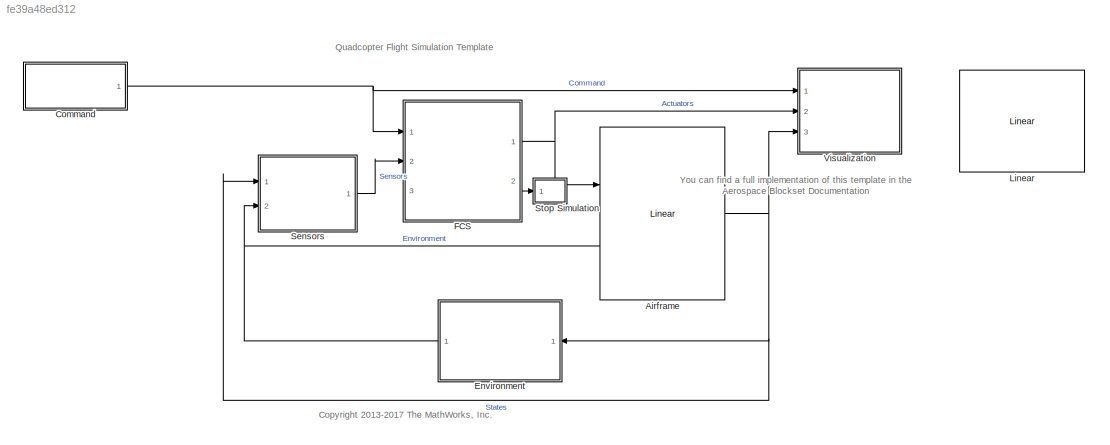
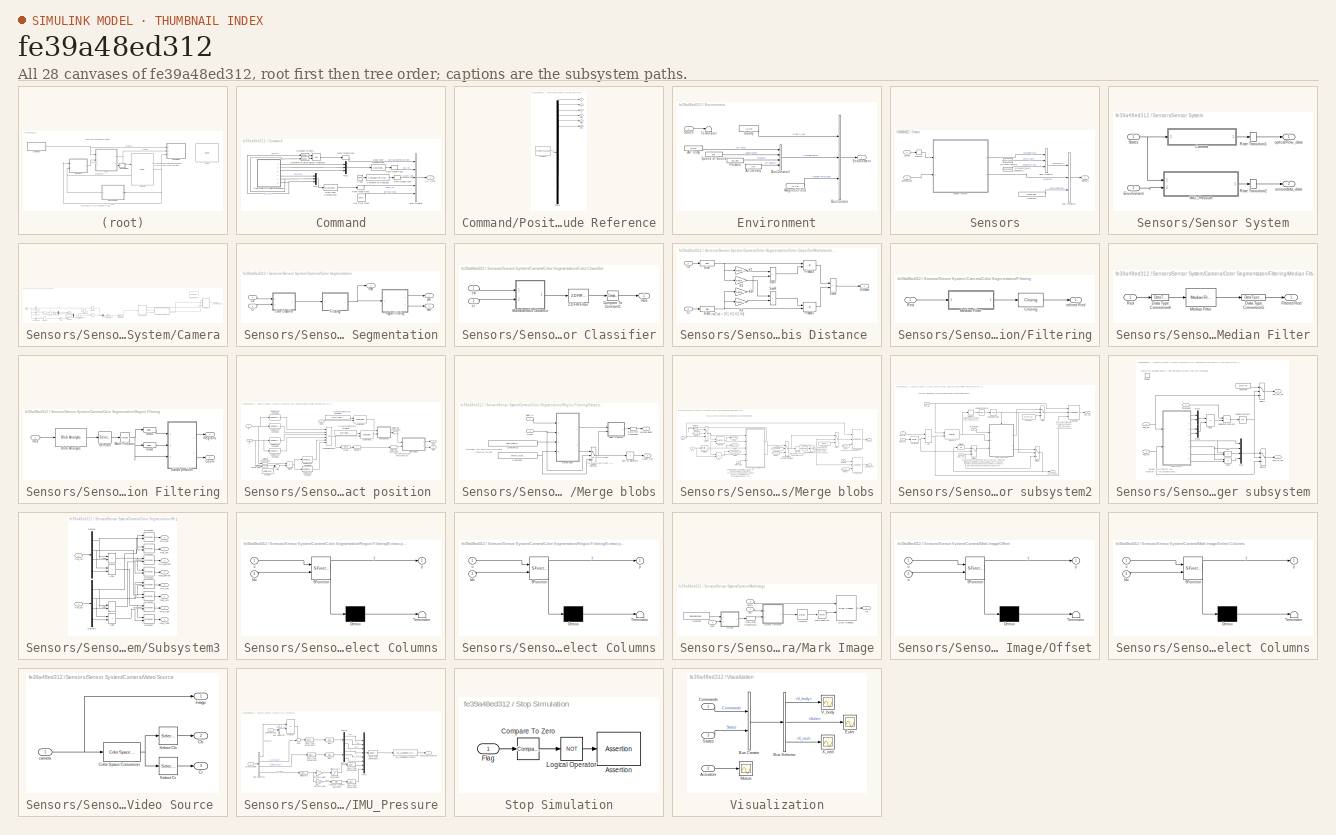
[diagram: thumbnail index - all 28 canvases of the model, root first then tree order]
MODEL slx_fe39a48ed312
KIND model
CONFIG AbsTol = auto
CONFIG EnableMultiTasking = on
CONFIG FixedStep = Ts
CONFIG MaxStep = auto
CONFIG MinStep = auto
CONFIG RelTol = 1e-3
CONFIG SampleTimeConstraint = Unconstrained
CONFIG Solver = ode3
CONFIG SolverName = ode3
CONFIG StartTime = 0
CONFIG StopTime = TFinal
BLOCK [Reference] Airframe  REF=liblinearframe/Linear
  Ports = [2, 1]
  SourceBlock = liblinearframe/Linear
BLOCK [SubSystem] Command
  Ports = [0, 1]
  RequestExecContextInheritance = off
  VariantControl = VSS_COMMAND_SIGBLDR
BLOCK [Outport] Command/AC Cmd
  OutDataTypeStr = Bus: CommandBus
  VectorParamsAs1DForOutWhenUnconnected = off
BLOCK [BusCreator] Command/Bus Creator
  DisplayOption = bar
  InheritFromInputs = on
  Inputs = 5
  NonVirtualBus = on
  OutDataTypeStr = Bus: CommandBus
  Ports = [5, 1]
BLOCK [Clock] Command/Clock
BLOCK [Reference] Command/Compare To Constant  REF=simulink/Logic and Bit
Operations/Compare
To Constant
  Ports = [1, 1]
  SourceBlock = simulink/Logic and Bit\nOperations/Compare\nTo Constant
  SourceProductBaseCode = SL
  SourceType = Compare To Constant
BLOCK [Reference] Command/Compare To Zero  REF=simulink/Logic and Bit
Operations/Compare
To Zero
  Ports = [1, 1]
  SourceBlock = simulink/Logic and Bit\nOperations/Compare\nTo Zero
  SourceProductBaseCode = SL
  SourceType = Compare To Zero
BLOCK [Reference] Command/Compare To Zero1  REF=simulink/Logic and Bit
Operations/Compare
To Zero
  Ports = [1, 1]
  SourceBlock = simulink/Logic and Bit\nOperations/Compare\nTo Zero
  SourceProductBaseCode = SL
  SourceType = Compare To Zero
BLOCK [DataTypeConversion] Command/Data Type Conversion1
  OutDataTypeStr = single
  RndMeth = Floor
  SaturateOnIntegerOverflow = off
BLOCK [DataTypeConversion] Command/Data Type Conversion3
  OutDataTypeStr = single
  RndMeth = Floor
  SaturateOnIntegerOverflow = off
BLOCK [Reference] Command/Live Time Ticks  REF=simulink/Sources/Counter
Free-Running
  Ports = [0, 1]
  SourceBlock = simulink/Sources/Counter\nFree-Running
  SourceProductBaseCode = SL
  SourceType = Counter Free-Running
BLOCK [Logic] Command/Logical Operator
  AllPortsSameDT = off
  OutDataTypeStr = boolean
  Ports = [2, 1]
BLOCK [Mux] Command/Mux
  DisplayOption = bar
  Inputs = 3
  Ports = [3, 1]
BLOCK [Mux] Command/Mux1
  DisplayOption = bar
  Inputs = 3
  Ports = [3, 1]
BLOCK [SubSystem] Command/Position//Attitude Reference
  ClipboardFcn = sigbuilder_block('clipboard');
  CloseFcn = sigbuilder_block('close');
  ContinueFcn = sigbuilder_block('continue');
  CopyFcn = sigbuilder_block('copy');
  DeleteFcn = sigbuilder_block('delete');
  LoadFcn = sigbuilder_block('load');
  MaskHideContents = on
  ModelCloseFcn = sigbuilder_block('modelClose');
  NameChangeFcn = sigbuilder_block('namechange');
  OpenFcn = sigbuilder_block('open',[246 211.5 555 408.75 ]);
  PauseFcn = sigbuilder_block('pause');
  Ports = [0, 6]
  PreSaveFcn = sigbuilder_block('preSave');
  RequestExecContextInheritance = off
  StartFcn = sigbuilder_block('start');
  StopFcn = sigbuilder_block('stop');
  Tag = STV Subsys
BLOCK [Demux] Command/Position//Attitude Reference/Demux
  DisplayOption = none
  Outputs = 6
  Ports = [1, 6]
  Tag = STV Demux
BLOCK [FromWorkspace] Command/Position//Attitude Reference/FromWs
  Tag = STV FromWs
  VariableName = tuvar
BLOCK [Outport] Command/Position//Attitude Reference/Pitch
  Port = 5
  Tag = STV Outport
  VectorParamsAs1DForOutWhenUnconnected = off
BLOCK [Outport] Command/Position//Attitude Reference/Roll
  Port = 6
  Tag = STV Outport
  VectorParamsAs1DForOutWhenUnconnected = off
BLOCK [Outport] Command/Position//Attitude Reference/X
  Tag = STV Outport
  VectorParamsAs1DForOutWhenUnconnected = off
BLOCK [Outport] Command/Position//Attitude Reference/Y
  Port = 2
  Tag = STV Outport
  VectorParamsAs1DForOutWhenUnconnected = off
BLOCK [Outport] Command/Position//Attitude Reference/Yaw
  Port = 4
  Tag = STV Outport
  VectorParamsAs1DForOutWhenUnconnected = off
BLOCK [Outport] Command/Position//Attitude Reference/Z
  Port = 3
  Tag = STV Outport
  VectorParamsAs1DForOutWhenUnconnected = off
BLOCK [RateTransition] Command/Rate Transition1
  OutPortSampleTime = Ts
BLOCK [RateTransition] Command/Rate Transition2
  OutPortSampleTime = Ts
BLOCK [RateTransition] Command/Rate Transition3
  OutPortSampleTime = Ts
BLOCK [RateTransition] Command/Rate Transition4
  OutPortSampleTime = Ts
BLOCK [SubSystem] Environment
  Ports = [1, 1]
  RequestExecContextInheritance = off
  TreatAsAtomicUnit = on
  VariantControl = VSS_ENVIRONMENT_CST
BLOCK [Constant] Environment/Air Density
  Value = rho
BLOCK [Constant] Environment/Air Temp
  Value = 273+15
BLOCK [BusCreator] Environment/Bus Creator
  DisplayOption = bar
  InheritFromInputs = on
  Inputs = 3
  NonVirtualBus = on
  OutDataTypeStr = Bus: EnvironmentBus
  Ports = [3, 1]
BLOCK [BusCreator] Environment/Bus Creator1
  DisplayOption = bar
  InheritFromInputs = on
  Inputs = 4
  NonVirtualBus = on
  OutDataTypeStr = Bus: AtmosphereBus
  Ports = [4, 1]
BLOCK [Outport] Environment/Environment
  VectorParamsAs1DForOutWhenUnconnected = off
BLOCK [Constant] Environment/Gravity
  Value = [0 0 g]
BLOCK [Constant] Environment/Magnetic Field
  Value = [0 0 0]
BLOCK [Constant] Environment/Pressure
  Value = 101.3e3
BLOCK [Constant] Environment/Speed of Sound
  Value = 340
BLOCK [Inport] Environment/States
  OutDataTypeStr = Bus: StatesBus
BLOCK [Terminator] Environment/Terminator
BLOCK [ModelReference] FCS
  ModelNameDialog = flightControlSystem.slx
  ModelReferenceVersion = 1.137
  Ports = [3, 2]
BLOCK [Reference] Linear  REF=libraries_plantLibrary/Linear
  Ports = [2, 1]
  SourceBlock = libraries_plantLibrary/Linear
BLOCK [SubSystem] Sensors
  Ports = [2, 1]
  RequestExecContextInheritance = off
  TreatAsAtomicUnit = on
  VariantControl = VSS_SENSORS_FEEDTHROUGH
BLOCK [BusCreator] Sensors/Bus Creator1
  DisplayOption = bar
  InheritFromInputs = on
  Inputs = 3
  NonVirtualBus = on
  OutDataTypeStr = Bus: SensorsBus
  Ports = [3, 1]
BLOCK [BusCreator] Sensors/Bus Creator2
  DisplayOption = bar
  InheritFromInputs = on
  Inputs = 3
  NonVirtualBus = on
  OutDataTypeStr = Bus: extraSensorData_t
  Ports = [3, 1]
BLOCK [Constant] Sensors/Constant1
  OutDataTypeStr = single
  Value = sensorCalibrationData
BLOCK [Inport] Sensors/Environment
  OutDataTypeStr = Bus: EnvironmentBus
  Port = 2
BLOCK [Memory] Sensors/Memory
  InheritSampleTime = on
  InitialCondition = States
BLOCK [SubSystem] Sensors/Sensor System
  Ports = [2, 2]
  RequestExecContextInheritance = off
BLOCK [SubSystem] Sensors/Sensor System/Camera
  AncestorBlock = sensorsLibrary/Camera
  Ports = [1, 1]
  RequestExecContextInheritance = off
BLOCK [Sum] Sensors/Sensor System/Camera/Add1
  IconShape = rectangular
  Ports = [2, 1]
BLOCK [BusSelector] Sensors/Sensor System/Camera/Bus Selector1
  OutputSignals = V_ned
  Ports = [1, 1]
BLOCK [BusSelector] Sensors/Sensor System/Camera/Bus Selector3
  OutputSignals = X_ned
  Ports = [1, 1]
BLOCK [BusSelector] Sensors/Sensor System/Camera/Bus Selector4
  OutputSignals = Omega_body
  Ports = [1, 1]
BLOCK [SubSystem] Sensors/Sensor System/Camera/Color Segmentation
  Ports = [2, 3]
  RequestExecContextInheritance = off
BLOCK [Inport] Sensors/Sensor System/Camera/Color Segmentation/Cb
BLOCK [SubSystem] Sensors/Sensor System/Camera/Color Segmentation/Color Classifier
  Ports = [2, 1]
  RequestExecContextInheritance = off
BLOCK [Reference] Sensors/Sensor System/Camera/Color Segmentation/Color Classifier/2-D FIR Filter  REF=visionfilter/2-D FIR Filter
  Ports = [1, 1]
  SourceBlock = visionfilter/2-D FIR Filter
  SourceProductBaseCode = VP
  SourceType = 2-D FIR Filter
BLOCK [Reference] Sensors/Sensor System/Camera/Color Segmentation/Color Classifier/Compare To Constant1  REF=simulink/Logic and Bit
Operations/Compare
To Constant
  Ports = [1, 1]
  SourceBlock = simulink/Logic and Bit\nOperations/Compare\nTo Constant
  SourceProductBaseCode = SL
  SourceType = Compare To Constant
BLOCK [SubSystem] Sensors/Sensor System/Camera/Color Segmentation/Color Classifier/Mahalanobis Distance 
  Ports = [2, 1]
  RequestExecContextInheritance = off
BLOCK [Bias] Sensors/Sensor System/Camera/Color Segmentation/Color Classifier/Mahalanobis Distance /Bias
  Bias = -single(90/255)
  SaturateOnIntegerOverflow = off
BLOCK [Bias] Sensors/Sensor System/Camera/Color Segmentation/Color Classifier/Mahalanobis Distance /Bias1
  Bias = -single(240/255)
  SaturateOnIntegerOverflow = off
BLOCK [Inport] Sensors/Sensor System/Camera/Color Segmentation/Color Classifier/Mahalanobis Distance /Cb
BLOCK [Inport] Sensors/Sensor System/Camera/Color Segmentation/Color Classifier/Mahalanobis Distance /Cr
  Port = 2
BLOCK [Outport] Sensors/Sensor System/Camera/Color Segmentation/Color Classifier/Mahalanobis Distance /Distance
BLOCK [Gain] Sensors/Sensor System/Camera/Color Segmentation/Color Classifier/Mahalanobis Distance /K1
  Gain = single(1.8328501e+03)
  OutDataTypeStr = Inherit: Same as input
  ParamDataTypeStr = Inherit: Same as input
  SaturateOnIntegerOverflow = on
BLOCK [Gain] Sensors/Sensor System/Camera/Color Segmentation/Color Classifier/Mahalanobis Distance /K2
  Gain = single(2.2506719e+03)
  OutDataTypeStr = Inherit: Same as input
  ParamDataTypeStr = Inherit: Same as input
  SaturateOnIntegerOverflow = on
BLOCK [Gain] Sensors/Sensor System/Camera/Color Segmentation/Color Classifier/Mahalanobis Distance /K3
  Gain = single(2.2506719e+03)
  OutDataTypeStr = Inherit: Same as input
  ParamDataTypeStr = Inherit: Same as input
  SaturateOnIntegerOverflow = on
BLOCK [Gain] Sensors/Sensor System/Camera/Color Segmentation/Color Classifier/Mahalanobis Distance /K4
  Gain = single(6.8658257e+03)
  OutDataTypeStr = Inherit: Same as input
  ParamDataTypeStr = Inherit: Same as input
  SaturateOnIntegerOverflow = on
BLOCK [Product] Sensors/Sensor System/Camera/Color Segmentation/Color Classifier/Mahalanobis Distance /Product4
  InputSameDT = on
  OutDataTypeStr = Inherit: Same as first input
  Ports = [2, 1]
  SaturateOnIntegerOverflow = on
BLOCK [Product] Sensors/Sensor System/Camera/Color Segmentation/Color Classifier/Mahalanobis Distance /Product5
  InputSameDT = on
  OutDataTypeStr = Inherit: Same as first input
  Ports = [2, 1]
  SaturateOnIntegerOverflow = on
BLOCK [Sum] Sensors/Sensor System/Camera/Color Segmentation/Color Classifier/Mahalanobis Distance /Sum6
  IconShape = rectangular
  InputSameDT = on
  OutDataTypeStr = Inherit: Same as first input
  Ports = [2, 1]
  SaturateOnIntegerOverflow = on
BLOCK [Sum] Sensors/Sensor System/Camera/Color Segmentation/Color Classifier/Mahalanobis Distance /Sum7
  IconShape = rectangular
  InputSameDT = on
  OutDataTypeStr = Inherit: Same as first input
  Ports = [2, 1]
  SaturateOnIntegerOverflow = on
BLOCK [Sum] Sensors/Sensor System/Camera/Color Segmentation/Color Classifier/Mahalanobis Distance /Sum8
  IconShape = rectangular
  InputSameDT = on
  OutDataTypeStr = Inherit: Same as first input
  Ports = [2, 1]
  SaturateOnIntegerOverflow = on
BLOCK [Outport] Sensors/Sensor System/Camera/Color Segmentation/Color Classifier/Red 
BLOCK [Inport] Sensors/Sensor System/Camera/Color Segmentation/Color Classifier/cb
BLOCK [Inport] Sensors/Sensor System/Camera/Color Segmentation/Color Classifier/cr
  Port = 2
BLOCK [Inport] Sensors/Sensor System/Camera/Color Segmentation/Cr
  Port = 2
BLOCK [SubSystem] Sensors/Sensor System/Camera/Color Segmentation/Filtering
  Ports = [1, 1]
  RequestExecContextInheritance = off
BLOCK [Reference] Sensors/Sensor System/Camera/Color Segmentation/Filtering/Closing  REF=visionmorphops/Closing
  Ports = [1, 1]
  SourceBlock = visionmorphops/Closing
  SourceProductBaseCode = VP
  SourceType = Closing
BLOCK [SubSystem] Sensors/Sensor System/Camera/Color Segmentation/Filtering/Median Filter
  Ports = [1, 1]
  RequestExecContextInheritance = off
BLOCK [DataTypeConversion] Sensors/Sensor System/Camera/Color Segmentation/Filtering/Median Filter/Data Type Conversion5
  OutDataTypeStr = boolean
BLOCK [DataTypeConversion] Sensors/Sensor System/Camera/Color Segmentation/Filtering/Median Filter/Data Type Conversion6
  OutDataTypeStr = single
BLOCK [Outport] Sensors/Sensor System/Camera/Color Segmentation/Filtering/Median Filter/Filtered Red 
BLOCK [Reference] Sensors/Sensor System/Camera/Color Segmentation/Filtering/Median Filter/Median Filter  REF=visionanalysis/Median Filter
  Ports = [1, 1]
  SourceBlock = visionanalysis/Median Filter
  SourceProductBaseCode = VP
  SourceType = Median Filter
BLOCK [Inport] Sensors/Sensor System/Camera/Color Segmentation/Filtering/Median Filter/Red
BLOCK [Inport] Sensors/Sensor System/Camera/Color Segmentation/Filtering/Red
BLOCK [Outport] Sensors/Sensor System/Camera/Color Segmentation/Filtering/refined Red 
BLOCK [Outport] Sensors/Sensor System/Camera/Color Segmentation/Red 
BLOCK [SubSystem] Sensors/Sensor System/Camera/Color Segmentation/Region Filtering
  Ports = [1, 2]
  RequestExecContextInheritance = off
BLOCK [Reference] Sensors/Sensor System/Camera/Color Segmentation/Region Filtering/Blob Analysis  REF=visionstatistics/Blob Analysis
  Ports = [1, 1]
  SourceBlock = visionstatistics/Blob Analysis
  SourceProductBaseCode = VP
  SourceType = Blob Analysis
  Tag = vipblks_row_conv
BLOCK [Outport] Sensors/Sensor System/Camera/Color Segmentation/Region Filtering/Count
  Port = 2
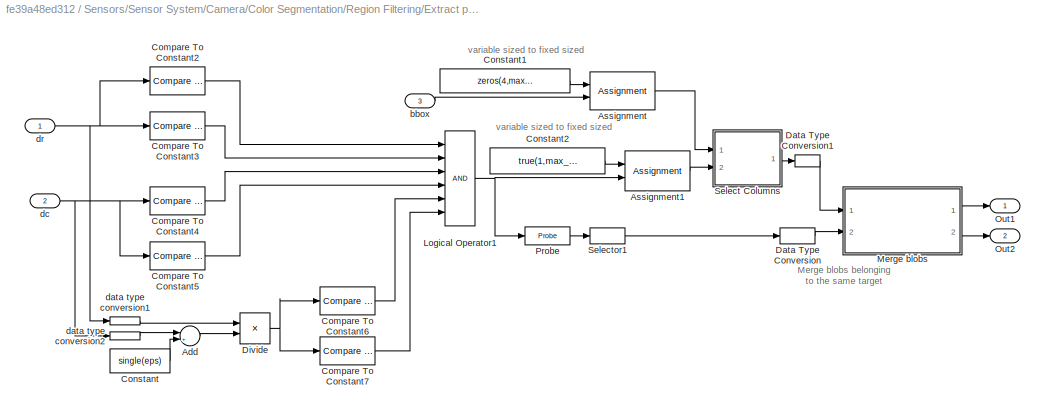
BLOCK [SubSystem] Sensors/Sensor System/Camera/Color Segmentation/Region Filtering/Extract position 
  Ports = [3, 2]
  RequestExecContextInheritance = off
BLOCK [Sum] Sensors/Sensor System/Camera/Color Segmentation/Region Filtering/Extract position /Add
  Inputs = |++
  Ports = [2, 1]
BLOCK [Assignment] Sensors/Sensor System/Camera/Color Segmentation/Region Filtering/Extract position /Assignment
  IndexMode = Zero-based
  IndexOptions = Assign all,Starting index (dialog)
  Indices = 0,0
  NumberOfDimensions = 2
  OutputInitialize = Specify size for each dimension in table
  OutputSizes = 1,1
  Ports = [2, 1]
BLOCK [Assignment] Sensors/Sensor System/Camera/Color Segmentation/Region Filtering/Extract position /Assignment1
  IndexMode = Zero-based
  IndexOptions = Assign all,Starting index (dialog)
  Indices = 0,0
  NumberOfDimensions = 2
  OutputInitialize = Specify size for each dimension in table
  OutputSizes = 1,1
  Ports = [2, 1]
BLOCK [Reference] Sensors/Sensor System/Camera/Color Segmentation/Region Filtering/Extract position /Compare To Constant2  REF=simulink/Logic and Bit
Operations/Compare
To Constant
  Ports = [1, 1]
  SourceBlock = simulink/Logic and Bit\nOperations/Compare\nTo Constant
  SourceProductBaseCode = SL
  SourceType = Compare To Constant
BLOCK [Reference] Sensors/Sensor System/Camera/Color Segmentation/Region Filtering/Extract position /Compare To Constant3  REF=simulink/Logic and Bit
Operations/Compare
To Constant
  Ports = [1, 1]
  SourceBlock = simulink/Logic and Bit\nOperations/Compare\nTo Constant
  SourceProductBaseCode = SL
  SourceType = Compare To Constant
BLOCK [Reference] Sensors/Sensor System/Camera/Color Segmentation/Region Filtering/Extract position /Compare To Constant4  REF=simulink/Logic and Bit
Operations/Compare
To Constant
  Ports = [1, 1]
  SourceBlock = simulink/Logic and Bit\nOperations/Compare\nTo Constant
  SourceProductBaseCode = SL
  SourceType = Compare To Constant
BLOCK [Reference] Sensors/Sensor System/Camera/Color Segmentation/Region Filtering/Extract position /Compare To Constant5  REF=simulink/Logic and Bit
Operations/Compare
To Constant
  Ports = [1, 1]
  SourceBlock = simulink/Logic and Bit\nOperations/Compare\nTo Constant
  SourceProductBaseCode = SL
  SourceType = Compare To Constant
BLOCK [Reference] Sensors/Sensor System/Camera/Color Segmentation/Region Filtering/Extract position /Compare To Constant6  REF=simulink/Logic and Bit
Operations/Compare
To Constant
  Ports = [1, 1]
  SourceBlock = simulink/Logic and Bit\nOperations/Compare\nTo Constant
  SourceProductBaseCode = SL
  SourceType = Compare To Constant
BLOCK [Reference] Sensors/Sensor System/Camera/Color Segmentation/Region Filtering/Extract position /Compare To Constant7  REF=simulink/Logic and Bit
Operations/Compare
To Constant
  Ports = [1, 1]
  SourceBlock = simulink/Logic and Bit\nOperations/Compare\nTo Constant
  SourceProductBaseCode = SL
  SourceType = Compare To Constant
BLOCK [Constant] Sensors/Sensor System/Camera/Color Segmentation/Region Filtering/Extract position /Constant
  Value = single(eps)
BLOCK [Constant] Sensors/Sensor System/Camera/Color Segmentation/Region Filtering/Extract position /Constant1
  OutDataTypeStr = int32
  Value = zeros(4,max_num_blobs)
BLOCK [Constant] Sensors/Sensor System/Camera/Color Segmentation/Region Filtering/Extract position /Constant2
  Value = true(1,max_num_blobs)
  VectorParams1D = off
BLOCK [DataTypeConversion] Sensors/Sensor System/Camera/Color Segmentation/Region Filtering/Extract position /Data Type Conversion
  OutDataTypeStr = uint8
  RndMeth = Floor
  SaturateOnIntegerOverflow = off
BLOCK [DataTypeConversion] Sensors/Sensor System/Camera/Color Segmentation/Region Filtering/Extract position /Data Type Conversion1
  OutDataTypeStr = int32
  RndMeth = Floor
  SaturateOnIntegerOverflow = off
BLOCK [Product] Sensors/Sensor System/Camera/Color Segmentation/Region Filtering/Extract position /Divide
  Inputs = */
  Ports = [2, 1]
BLOCK [Logic] Sensors/Sensor System/Camera/Color Segmentation/Region Filtering/Extract position /Logical Operator1
  AllPortsSameDT = off
  Inputs = 6
  OutDataTypeStr = boolean
  Ports = [6, 1]
BLOCK [SubSystem] Sensors/Sensor System/Camera/Color Segmentation/Region Filtering/Extract position /Merge blobs
  Ports = [2, 2]
  RequestExecContextInheritance = off
BLOCK [Inport] Sensors/Sensor System/Camera/Color Segmentation/Region Filtering/Extract position /Merge blobs/BBox In
BLOCK [Constant] Sensors/Sensor System/Camera/Color Segmentation/Region Filtering/Extract position /Merge blobs/Constant1
  OutDataTypeStr = Inherit: Inherit via back propagation
  Value = zeros(1,max_num_blobs)
  VectorParams1D = off
BLOCK [Constant] Sensors/Sensor System/Camera/Color Segmentation/Region Filtering/Extract position /Merge blobs/Constant22
  OutDataTypeStr = Inherit: Inherit via back propagation
  Value = bbox_edge_distance_threshold
  VectorParams1D = off
BLOCK [Inport] Sensors/Sensor System/Camera/Color Segmentation/Region Filtering/Extract position /Merge blobs/Count
  Port = 2
BLOCK [Outport] Sensors/Sensor System/Camera/Color Segmentation/Region Filtering/Extract position /Merge blobs/Count Out
  Port = 2
BLOCK [DataTypeConversion] Sensors/Sensor System/Camera/Color Segmentation/Region Filtering/Extract position /Merge blobs/Data Type Conversion
  OutDataTypeStr = int32
  RndMeth = Floor
  SaturateOnIntegerOverflow = off
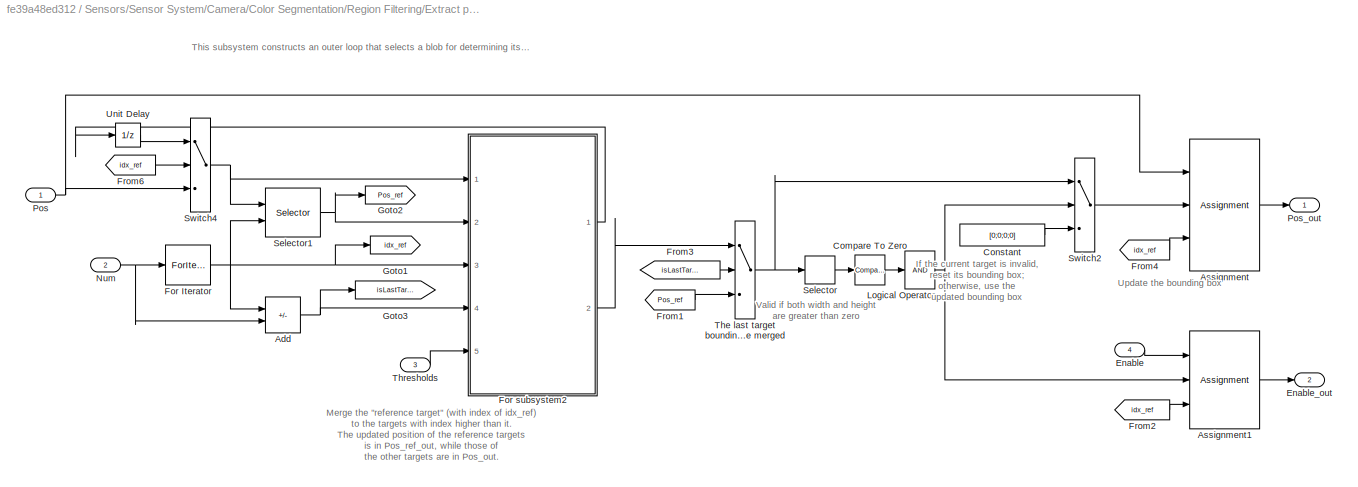
BLOCK [SubSystem] Sensors/Sensor System/Camera/Color Segmentation/Region Filtering/Extract position /Merge blobs/Merge blobs
  Ports = [4, 2]
  RequestExecContextInheritance = off
BLOCK [Sum] Sensors/Sensor System/Camera/Color Segmentation/Region Filtering/Extract position /Merge blobs/Merge blobs/Add
  IconShape = rectangular
  Inputs = -+
  Ports = [2, 1]
BLOCK [Assignment] Sensors/Sensor System/Camera/Color Segmentation/Region Filtering/Extract position /Merge blobs/Merge blobs/Assignment
  IndexOptions = Assign all,Index vector (port)
  Indices = (-1),(-1)
  NumberOfDimensions = 2
  OutputSizes = 1, 1
  Ports = [3, 1]
BLOCK [Assignment] Sensors/Sensor System/Camera/Color Segmentation/Region Filtering/Extract position /Merge blobs/Merge blobs/Assignment1
  IndexOptions = Assign all,Index vector (port)
  Indices = (-1),(-1)
  NumberOfDimensions = 2
  OutputSizes = 1, 1
  Ports = [3, 1]
BLOCK [Reference] Sensors/Sensor System/Camera/Color Segmentation/Region Filtering/Extract position /Merge blobs/Merge blobs/Compare To Zero  REF=simulink/Logic and Bit
Operations/Compare
To Zero
  Ports = [1, 1]
  SourceBlock = simulink/Logic and Bit\nOperations/Compare\nTo Zero
  SourceProductBaseCode = SL
  SourceType = Compare To Zero
BLOCK [Constant] Sensors/Sensor System/Camera/Color Segmentation/Region Filtering/Extract position /Merge blobs/Merge blobs/Constant
  OutDataTypeStr = Inherit: Inherit via back propagation
  Value = [0;0;0;0]
BLOCK [Inport] Sensors/Sensor System/Camera/Color Segmentation/Region Filtering/Extract position /Merge blobs/Merge blobs/Enable
  Port = 4
BLOCK [Outport] Sensors/Sensor System/Camera/Color Segmentation/Region Filtering/Extract position /Merge blobs/Merge blobs/Enable_out
  Port = 2
BLOCK [ForIterator] Sensors/Sensor System/Camera/Color Segmentation/Region Filtering/Extract position /Merge blobs/Merge blobs/For Iterator
  IterationSource = external
  Ports = [1, 1]
  ResetStates = reset
BLOCK [SubSystem] Sensors/Sensor System/Camera/Color Segmentation/Region Filtering/Extract position /Merge blobs/Merge blobs/For subsystem2
  Ports = [5, 2]
  RequestExecContextInheritance = off
BLOCK [Sum] Sensors/Sensor System/Camera/Color Segmentation/Region Filtering/Extract position /Merge blobs/Merge blobs/For subsystem2/Add
  IconShape = rectangular
  Ports = [2, 1]
BLOCK [Assignment] Sensors/Sensor System/Camera/Color Segmentation/Region Filtering/Extract position /Merge blobs/Merge blobs/For subsystem2/Assignment
  IndexOptions = Assign all,Index vector (port)
  Indices = (-1),(-1)
  NumberOfDimensions = 2
  OutputSizes = 1, 1
  Ports = [3, 1]
BLOCK [Reference] Sensors/Sensor System/Camera/Color Segmentation/Region Filtering/Extract position /Merge blobs/Merge blobs/For subsystem2/Compare To Zero  REF=simulink/Logic and Bit
Operations/Compare
To Zero
  Ports = [1, 1]
  SourceBlock = simulink/Logic and Bit\nOperations/Compare\nTo Zero
  SourceProductBaseCode = SL
  SourceType = Compare To Zero
BLOCK [Constant] Sensors/Sensor System/Camera/Color Segmentation/Region Filtering/Extract position /Merge blobs/Merge blobs/For subsystem2/Constant
  OutDataTypeStr = Inherit: Inherit via back propagation
  Value = zeros(4,1)
  VectorParams1D = off
BLOCK [ForIterator] Sensors/Sensor System/Camera/Color Segmentation/Region Filtering/Extract position /Merge blobs/Merge blobs/For subsystem2/For Iterator
  IterationSource = external
  Ports = [1, 1]
  ResetStates = reset
BLOCK [Inport] Sensors/Sensor System/Camera/Color Segmentation/Region Filtering/Extract position /Merge blobs/Merge blobs/For subsystem2/Idx_ref
  NameLocation = top
  Port = 3
BLOCK [Logic] Sensors/Sensor System/Camera/Color Segmentation/Region Filtering/Extract position /Merge blobs/Merge blobs/For subsystem2/Logical Operator
  AllPortsSameDT = off
  Inputs = 1
  OutDataTypeStr = boolean
  Ports = [1, 1]
BLOCK [Inport] Sensors/Sensor System/Camera/Color Segmentation/Region Filtering/Extract position /Merge blobs/Merge blobs/For subsystem2/Num_cur
  Port = 4
BLOCK [Inport] Sensors/Sensor System/Camera/Color Segmentation/Region Filtering/Extract position /Merge blobs/Merge blobs/For subsystem2/Pos_all
BLOCK [Outport] Sensors/Sensor System/Camera/Color Segmentation/Region Filtering/Extract position /Merge blobs/Merge blobs/For subsystem2/Pos_out
BLOCK [Inport] Sensors/Sensor System/Camera/Color Segmentation/Region Filtering/Extract position /Merge blobs/Merge blobs/For subsystem2/Pos_ref
  Port = 2
BLOCK [Outport] Sensors/Sensor System/Camera/Color Segmentation/Region Filtering/Extract position /Merge blobs/Merge blobs/For subsystem2/Pos_ref_out
  Port = 2
BLOCK [Selector] Sensors/Sensor System/Camera/Color Segmentation/Region Filtering/Extract position /Merge blobs/Merge blobs/For subsystem2/Selector1
  IndexOptions = Index vector (dialog)
  Indices = ([3 4])
  InputPortWidth = 4
  OutputSizes = 1
  Ports = [1, 1]
BLOCK [Selector] Sensors/Sensor System/Camera/Color Segmentation/Region Filtering/Extract position /Merge blobs/Merge blobs/For subsystem2/Selector3
  IndexOptions = Select all,Index vector (port)
  Indices = (-1),(-1)
  InputPortWidth = 3
  NumberOfDimensions = 2
  OutputSizes = 1
  Ports = [2, 1]
BLOCK [Switch] Sensors/Sensor System/Camera/Color Segmentation/Region Filtering/Extract position /Merge blobs/Merge blobs/For subsystem2/Switch
  Criteria = u2 ~= 0
  InputSameDT = off
  SaturateOnIntegerOverflow = off
BLOCK [Switch] Sensors/Sensor System/Camera/Color Segmentation/Region Filtering/Extract position /Merge blobs/Merge blobs/For subsystem2/Switch1
  Criteria = u2 ~= 0
  InputSameDT = off
  SaturateOnIntegerOverflow = off
BLOCK [Switch] Sensors/Sensor System/Camera/Color Segmentation/Region Filtering/Extract position /Merge blobs/Merge blobs/For subsystem2/Switch2
  Criteria = u2 > Threshold
  InputSameDT = off
  SaturateOnIntegerOverflow = off
  Threshold = 1
BLOCK [Inport] Sensors/Sensor System/Camera/Color Segmentation/Region Filtering/Extract position /Merge blobs/Merge blobs/For subsystem2/Thresholds
  Port = 5
BLOCK [SubSystem] Sensors/Sensor System/Camera/Color Segmentation/Region Filtering/Extract position /Merge blobs/Merge blobs/For subsystem2/Trigger subsystem
  Ports = [3, 2, 1]
  RequestExecContextInheritance = off
BLOCK [Sum] Sensors/Sensor System/Camera/Color Segmentation/Region Filtering/Extract position /Merge blobs/Merge blobs/For subsystem2/Trigger subsystem/Add2
  IconShape = rectangular
  Inputs = +-
  Ports = [2, 1]
BLOCK [Sum] Sensors/Sensor System/Camera/Color Segmentation/Region Filtering/Extract position /Merge blobs/Merge blobs/For subsystem2/Trigger subsystem/Add7
  IconShape = rectangular
  Inputs = -+
  Ports = [2, 1]
BLOCK [Sum] Sensors/Sensor System/Camera/Color Segmentation/Region Filtering/Extract position /Merge blobs/Merge blobs/For subsystem2/Trigger subsystem/Add8
  IconShape = rectangular
  Inputs = -+
  Ports = [2, 1]
BLOCK [Constant] Sensors/Sensor System/Camera/Color Segmentation/Region Filtering/Extract position /Merge blobs/Merge blobs/For subsystem2/Trigger subsystem/Constant
  OutDataTypeStr = Inherit: Inherit via back propagation
  Value = zeros(4,1)
  VectorParams1D = off
BLOCK [EnablePort] Sensors/Sensor System/Camera/Color Segmentation/Region Filtering/Extract position /Merge blobs/Merge blobs/For subsystem2/Trigger subsystem/Enable
  Ports = []
  PropagateVarSize = During execution
BLOCK [Logic] Sensors/Sensor System/Camera/Color Segmentation/Region Filtering/Extract position /Merge blobs/Merge blobs/For subsystem2/Trigger subsystem/Logical Operator
  AllPortsSameDT = off
  Inputs = 1
  OutDataTypeStr = boolean
  Ports = [1, 1]
BLOCK [Mux] Sensors/Sensor System/Camera/Color Segmentation/Region Filtering/Extract position /Merge blobs/Merge blobs/For subsystem2/Trigger subsystem/Mux
  DisplayOption = bar
  Ports = [4, 1]
BLOCK [Mux] Sensors/Sensor System/Camera/Color Segmentation/Region Filtering/Extract position /Merge blobs/Merge blobs/For subsystem2/Trigger subsystem/Mux2
  DisplayOption = bar
  Inputs = 2
  Ports = [2, 1]
BLOCK [Mux] Sensors/Sensor System/Camera/Color Segmentation/Region Filtering/Extract position /Merge blobs/Merge blobs/For subsystem2/Trigger subsystem/Mux3
  DisplayOption = bar
  Inputs = 2
  Ports = [2, 1]
BLOCK [Inport] Sensors/Sensor System/Camera/Color Segmentation/Region Filtering/Extract position /Merge blobs/Merge blobs/For subsystem2/Trigger subsystem/Pos_cur
  Port = 2
BLOCK [Outport] Sensors/Sensor System/Camera/Color Segmentation/Region Filtering/Extract position /Merge blobs/Merge blobs/For subsystem2/Trigger subsystem/Pos_cur_out
BLOCK [Inport] Sensors/Sensor System/Camera/Color Segmentation/Region Filtering/Extract position /Merge blobs/Merge blobs/For subsystem2/Trigger subsystem/Pos_ref
  Port = 3
BLOCK [Outport] Sensors/Sensor System/Camera/Color Segmentation/Region Filtering/Extract position /Merge blobs/Merge blobs/For subsystem2/Trigger subsystem/Pos_ref_out
  Port = 2
BLOCK [RelationalOperator] Sensors/Sensor System/Camera/Color Segmentation/Region Filtering/Extract position /Merge blobs/Merge blobs/For subsystem2/Trigger subsystem/Relational Operator
  InputSameDT = off
  Operator = >
  OutDataTypeStr = boolean
  Ports = [2, 1]
BLOCK [SubSystem] Sensors/Sensor System/Camera/Color Segmentation/Region Filtering/Extract position /Merge blobs/Merge blobs/For subsystem2/Trigger subsystem/Subsystem3
  Ports = [2, 8]
  RequestExecContextInheritance = off
BLOCK [Sum] Sensors/Sensor System/Camera/Color Segmentation/Region Filtering/Extract position /Merge blobs/Merge blobs/For subsystem2/Trigger subsystem/Subsystem3/Add3
  IconShape = rectangular
  Ports = [2, 1]
BLOCK [Sum] Sensors/Sensor System/Camera/Color Segmentation/Region Filtering/Extract position /Merge blobs/Merge blobs/For subsystem2/Trigger subsystem/Subsystem3/Add4
  IconShape = rectangular
  Ports = [2, 1]
BLOCK [Sum] Sensors/Sensor System/Camera/Color Segmentation/Region Filtering/Extract position /Merge blobs/Merge blobs/For subsystem2/Trigger subsystem/Subsystem3/Add5
  IconShape = rectangular
  Ports = [2, 1]
BLOCK [Sum] Sensors/Sensor System/Camera/Color Segmentation/Region Filtering/Extract position /Merge blobs/Merge blobs/For subsystem2/Trigger subsystem/Subsystem3/Add6
  IconShape = rectangular
  Ports = [2, 1]
BLOCK [Demux] Sensors/Sensor System/Camera/Color Segmentation/Region Filtering/Extract position /Merge blobs/Merge blobs/For subsystem2/Trigger subsystem/Subsystem3/Demux
  Ports = [1, 4]
BLOCK [Demux] Sensors/Sensor System/Camera/Color Segmentation/Region Filtering/Extract position /Merge blobs/Merge blobs/For subsystem2/Trigger subsystem/Subsystem3/Demux1
  Ports = [1, 4]
BLOCK [MinMax] Sensors/Sensor System/Camera/Color Segmentation/Region Filtering/Extract position /Merge blobs/Merge blobs/For subsystem2/Trigger subsystem/Subsystem3/MinMax2
  Function = max
  Inputs = 2
  Ports = [2, 1]
BLOCK [MinMax] Sensors/Sensor System/Camera/Color Segmentation/Region Filtering/Extract position /Merge blobs/Merge blobs/For subsystem2/Trigger subsystem/Subsystem3/MinMax3
  Inputs = 2
  Ports = [2, 1]
BLOCK [MinMax] Sensors/Sensor System/Camera/Color Segmentation/Region Filtering/Extract position /Merge blobs/Merge blobs/For subsystem2/Trigger subsystem/Subsystem3/MinMax4
  Function = max
  Inputs = 2
  Ports = [2, 1]
BLOCK [MinMax] Sensors/Sensor System/Camera/Color Segmentation/Region Filtering/Extract position /Merge blobs/Merge blobs/For subsystem2/Trigger subsystem/Subsystem3/MinMax5
  Inputs = 2
  Ports = [2, 1]
BLOCK [MinMax] Sensors/Sensor System/Camera/Color Segmentation/Region Filtering/Extract position /Merge blobs/Merge blobs/For subsystem2/Trigger subsystem/Subsystem3/MinMax6
  Inputs = 2
  Ports = [2, 1]
BLOCK [MinMax] Sensors/Sensor System/Camera/Color Segmentation/Region Filtering/Extract position /Merge blobs/Merge blobs/For subsystem2/Trigger subsystem/Subsystem3/MinMax7
  Function = max
  Inputs = 2
  Ports = [2, 1]
BLOCK [MinMax] Sensors/Sensor System/Camera/Color Segmentation/Region Filtering/Extract position /Merge blobs/Merge blobs/For subsystem2/Trigger subsystem/Subsystem3/MinMax8
  Inputs = 2
  Ports = [2, 1]
BLOCK [MinMax] Sensors/Sensor System/Camera/Color Segmentation/Region Filtering/Extract position /Merge blobs/Merge blobs/For subsystem2/Trigger subsystem/Subsystem3/MinMax9
  Function = max
  Inputs = 2
  Ports = [2, 1]
BLOCK [Inport] Sensors/Sensor System/Camera/Color Segmentation/Region Filtering/Extract position /Merge blobs/Merge blobs/For subsystem2/Trigger subsystem/Subsystem3/Pos_cur
BLOCK [Inport] Sensors/Sensor System/Camera/Color Segmentation/Region Filtering/Extract position /Merge blobs/Merge blobs/For subsystem2/Trigger subsystem/Subsystem3/Pos_ref
  Port = 2
BLOCK [Outport] Sensors/Sensor System/Camera/Color Segmentation/Region Filtering/Extract position /Merge blobs/Merge blobs/For subsystem2/Trigger subsystem/Subsystem3/max_bottom
  Port = 7
BLOCK [Outport] Sensors/Sensor System/Camera/Color Segmentation/Region Filtering/Extract position /Merge blobs/Merge blobs/For subsystem2/Trigger subsystem/Subsystem3/max_left
  Port = 2
BLOCK [Outport] Sensors/Sensor System/Camera/Color Segmentation/Region Filtering/Extract position /Merge blobs/Merge blobs/For subsystem2/Trigger subsystem/Subsystem3/max_right
  Port = 8
BLOCK [Outport] Sensors/Sensor System/Camera/Color Segmentation/Region Filtering/Extract position /Merge blobs/Merge blobs/For subsystem2/Trigger subsystem/Subsystem3/max_top
BLOCK [Outport] Sensors/Sensor System/Camera/Color Segmentation/Region Filtering/Extract position /Merge blobs/Merge blobs/For subsystem2/Trigger subsystem/Subsystem3/min_bottom
  Port = 3
BLOCK [Outport] Sensors/Sensor System/Camera/Color Segmentation/Region Filtering/Extract position /Merge blobs/Merge blobs/For subsystem2/Trigger subsystem/Subsystem3/min_left
  Port = 6
BLOCK [Outport] Sensors/Sensor System/Camera/Color Segmentation/Region Filtering/Extract position /Merge blobs/Merge blobs/For subsystem2/Trigger subsystem/Subsystem3/min_right
  Port = 4
BLOCK [Outport] Sensors/Sensor System/Camera/Color Segmentation/Region Filtering/Extract position /Merge blobs/Merge blobs/For subsystem2/Trigger subsystem/Subsystem3/min_top
  Port = 5
BLOCK [Switch] Sensors/Sensor System/Camera/Color Segmentation/Region Filtering/Extract position /Merge blobs/Merge blobs/For subsystem2/Trigger subsystem/Switch
  Criteria = u2 ~= 0
  InputSameDT = off
  SaturateOnIntegerOverflow = off
BLOCK [Switch] Sensors/Sensor System/Camera/Color Segmentation/Region Filtering/Extract position /Merge blobs/Merge blobs/For subsystem2/Trigger subsystem/Switch1
  Criteria = u2 ~= 0
  InputSameDT = off
  SaturateOnIntegerOverflow = off
BLOCK [Inport] Sensors/Sensor System/Camera/Color Segmentation/Region Filtering/Extract position /Merge blobs/Merge blobs/For subsystem2/Trigger subsystem/Thresholds
  NameLocation = top
BLOCK [UnitDelay] Sensors/Sensor System/Camera/Color Segmentation/Region Filtering/Extract position /Merge blobs/Merge blobs/For subsystem2/Unit Delay
  HasFrameUpgradeWarning = on
  SampleTime = -1
BLOCK [From] Sensors/Sensor System/Camera/Color Segmentation/Region Filtering/Extract position /Merge blobs/Merge blobs/From1
  CloseFcn = tagdialog Close
  GotoTag = Pos_ref
BLOCK [From] Sensors/Sensor System/Camera/Color Segmentation/Region Filtering/Extract position /Merge blobs/Merge blobs/From2
  CloseFcn = tagdialog Close
  GotoTag = idx_ref
BLOCK [From] Sensors/Sensor System/Camera/Color Segmentation/Region Filtering/Extract position /Merge blobs/Merge blobs/From3
  CloseFcn = tagdialog Close
  GotoTag = isLastTarget
BLOCK [From] Sensors/Sensor System/Camera/Color Segmentation/Region Filtering/Extract position /Merge blobs/Merge blobs/From4
  CloseFcn = tagdialog Close
  GotoTag = idx_ref
BLOCK [From] Sensors/Sensor System/Camera/Color Segmentation/Region Filtering/Extract position /Merge blobs/Merge blobs/From6
  CloseFcn = tagdialog Close
  GotoTag = idx_ref
BLOCK [Goto] Sensors/Sensor System/Camera/Color Segmentation/Region Filtering/Extract position /Merge blobs/Merge blobs/Goto1
  GotoTag = idx_ref
BLOCK [Goto] Sensors/Sensor System/Camera/Color Segmentation/Region Filtering/Extract position /Merge blobs/Merge blobs/Goto2
  GotoTag = Pos_ref
BLOCK [Goto] Sensors/Sensor System/Camera/Color Segmentation/Region Filtering/Extract position /Merge blobs/Merge blobs/Goto3
  GotoTag = isLastTarget
BLOCK [Logic] Sensors/Sensor System/Camera/Color Segmentation/Region Filtering/Extract position /Merge blobs/Merge blobs/Logical Operator
  AllPortsSameDT = off
  Inputs = 1
  OutDataTypeStr = boolean
  Ports = [1, 1]
BLOCK [Inport] Sensors/Sensor System/Camera/Color Segmentation/Region Filtering/Extract position /Merge blobs/Merge blobs/Num
  Port = 2
BLOCK [Inport] Sensors/Sensor System/Camera/Color Segmentation/Region Filtering/Extract position /Merge blobs/Merge blobs/Pos
BLOCK [Outport] Sensors/Sensor System/Camera/Color Segmentation/Region Filtering/Extract position /Merge blobs/Merge blobs/Pos_out
BLOCK [Selector] Sensors/Sensor System/Camera/Color Segmentation/Region Filtering/Extract position /Merge blobs/Merge blobs/Selector
  IndexOptions = Index vector (dialog)
  Indices = ([3 4])
  InputPortWidth = 4
  OutputSizes = 1
  Ports = [1, 1]
BLOCK [Selector] Sensors/Sensor System/Camera/Color Segmentation/Region Filtering/Extract position /Merge blobs/Merge blobs/Selector1
  IndexOptions = Select all,Index vector (port)
  Indices = (-1),(-1)
  InputPortWidth = 3
  NumberOfDimensions = 2
  OutputSizes = 1
  Ports = [2, 1]
BLOCK [Switch] Sensors/Sensor System/Camera/Color Segmentation/Region Filtering/Extract position /Merge blobs/Merge blobs/Switch2
  Criteria = u2 ~= 0
  InputSameDT = off
  SaturateOnIntegerOverflow = off
  Threshold = 1
BLOCK [Switch] Sensors/Sensor System/Camera/Color Segmentation/Region Filtering/Extract position /Merge blobs/Merge blobs/Switch4
  Criteria = u2 > Threshold
  SaturateOnIntegerOverflow = off
  Threshold = 1
BLOCK [Switch] Sensors/Sensor System/Camera/Color Segmentation/Region Filtering/Extract position /Merge blobs/Merge blobs/The last target bounding box does not need to be merged
  Criteria = u2 ~= 0
  InputSameDT = off
  SaturateOnIntegerOverflow = off
  Threshold = 1
BLOCK [Inport] Sensors/Sensor System/Camera/Color Segmentation/Region Filtering/Extract position /Merge blobs/Merge blobs/Thresholds
  NameLocation = top
  Port = 3
BLOCK [UnitDelay] Sensors/Sensor System/Camera/Color Segmentation/Region Filtering/Extract position /Merge blobs/Merge blobs/Unit Delay
  HasFrameUpgradeWarning = on
  SampleTime = -1
BLOCK [Outport] Sensors/Sensor System/Camera/Color Segmentation/Region Filtering/Extract position /Merge blobs/Merged BBox
BLOCK [SubSystem] Sensors/Sensor System/Camera/Color Segmentation/Region Filtering/Extract position /Merge blobs/Select Columns
  ErrorFcn = Stateflow.Translate.translate
  PermitHierarchicalResolution = ExplicitOnly
  Ports = [2, 1]
  RequestExecContextInheritance = off
  SFBlockType = MATLAB Function
  TreatAsAtomicUnit = on
BLOCK [Demux] Sensors/Sensor System/Camera/Color Segmentation/Region Filtering/Extract position /Merge blobs/Select Columns/ Demux 
  Outputs = 1
  Ports = [1, 1]
BLOCK [S-Function] Sensors/Sensor System/Camera/Color Segmentation/Region Filtering/Extract position /Merge blobs/Select Columns/ SFunction 
  EnableBusSupport = off
  FunctionName = sf_sfun
  PortCounts = [2 2]
  Ports = [2, 2]
  SFcnIsStateOwnerBlock = off
  SFunctionDeploymentMode = off
  Tag = Stateflow S-Function 1
BLOCK [Terminator] Sensors/Sensor System/Camera/Color Segmentation/Region Filtering/Extract position /Merge blobs/Select Columns/ Terminator 
BLOCK [Inport] Sensors/Sensor System/Camera/Color Segmentation/Region Filtering/Extract position /Merge blobs/Select Columns/Idx
  Port = 2
BLOCK [Inport] Sensors/Sensor System/Camera/Color Segmentation/Region Filtering/Extract position /Merge blobs/Select Columns/u
BLOCK [Outport] Sensors/Sensor System/Camera/Color Segmentation/Region Filtering/Extract position /Merge blobs/Select Columns/y
BLOCK [Sum] Sensors/Sensor System/Camera/Color Segmentation/Region Filtering/Extract position /Merge blobs/Sum of Elements
  IconShape = rectangular
  Inputs = +
  Ports = [1, 1]
BLOCK [Switch] Sensors/Sensor System/Camera/Color Segmentation/Region Filtering/Extract position /Merge blobs/Switch1
  Criteria = u2 ~= 0
  InputSameDT = off
  SaturateOnIntegerOverflow = off
  Threshold = 1
  ZeroCross = off
BLOCK [Outport] Sensors/Sensor System/Camera/Color Segmentation/Region Filtering/Extract position /Out1
  NameLocation = top
BLOCK [Outport] Sensors/Sensor System/Camera/Color Segmentation/Region Filtering/Extract position /Out2
  Port = 2
BLOCK [Probe] Sensors/Sensor System/Camera/Color Segmentation/Region Filtering/Extract position /Probe
  NameLocation = top
  Ports = [1, 1]
  ProbeComplexSignal = off
  ProbeSampleTime = off
  ProbeSignalDimensions = on
  ProbeWidth = off
  ProbeWidthDataType = uint8
BLOCK [SubSystem] Sensors/Sensor System/Camera/Color Segmentation/Region Filtering/Extract position /Select Columns
  ErrorFcn = Stateflow.Translate.translate
  PermitHierarchicalResolution = ExplicitOnly
  Ports = [2, 1]
  RequestExecContextInheritance = off
  SFBlockType = MATLAB Function
  TreatAsAtomicUnit = on
BLOCK [Demux] Sensors/Sensor System/Camera/Color Segmentation/Region Filtering/Extract position /Select Columns/ Demux 
  Outputs = 1
  Ports = [1, 1]
BLOCK [S-Function] Sensors/Sensor System/Camera/Color Segmentation/Region Filtering/Extract position /Select Columns/ SFunction 
  EnableBusSupport = off
  FunctionName = sf_sfun
  PortCounts = [2 2]
  Ports = [2, 2]
  SFcnIsStateOwnerBlock = off
  SFunctionDeploymentMode = off
  Tag = Stateflow S-Function 3
BLOCK [Terminator] Sensors/Sensor System/Camera/Color Segmentation/Region Filtering/Extract position /Select Columns/ Terminator 
BLOCK [Inport] Sensors/Sensor System/Camera/Color Segmentation/Region Filtering/Extract position /Select Columns/Idx
  Port = 2
BLOCK [Inport] Sensors/Sensor System/Camera/Color Segmentation/Region Filtering/Extract position /Select Columns/u
BLOCK [Outport] Sensors/Sensor System/Camera/Color Segmentation/Region Filtering/Extract position /Select Columns/y
BLOCK [Selector] Sensors/Sensor System/Camera/Color Segmentation/Region Filtering/Extract position /Selector1
  IndexOptions = Index vector (dialog),Index vector (dialog)
  Indices = 1,2
  InputPortWidth = 3
  NumberOfDimensions = 2
  OutputSizes = 99,1
  Ports = [1, 1]
BLOCK [Inport] Sensors/Sensor System/Camera/Color Segmentation/Region Filtering/Extract position /bbox
  Port = 3
BLOCK [DataTypeConversion] Sensors/Sensor System/Camera/Color Segmentation/Region Filtering/Extract position /data type conversion1
  OutDataTypeStr = single
BLOCK [DataTypeConversion] Sensors/Sensor System/Camera/Color Segmentation/Region Filtering/Extract position /data type conversion2
  OutDataTypeStr = single
BLOCK [Inport] Sensors/Sensor System/Camera/Color Segmentation/Region Filtering/Extract position /dc
  Port = 2
BLOCK [Inport] Sensors/Sensor System/Camera/Color Segmentation/Region Filtering/Extract position /dr
BLOCK [Math] Sensors/Sensor System/Camera/Color Segmentation/Region Filtering/Math Function
  Operator = transpose
  Ports = [1, 1]
  SignedPower = on
BLOCK [Inport] Sensors/Sensor System/Camera/Color Segmentation/Region Filtering/Red
BLOCK [Outport] Sensors/Sensor System/Camera/Color Segmentation/Region Filtering/Regions
BLOCK [Selector] Sensors/Sensor System/Camera/Color Segmentation/Region Filtering/Selector
  IndexOptions = Select all,Index vector (dialog)
  Indices = [2 1 4 3],[2 1 4 3]
  InputPortWidth = 3
  NumberOfDimensions = 2
  OutputSizes = 1,1
  Ports = [1, 1]
BLOCK [Selector] Sensors/Sensor System/Camera/Color Segmentation/Region Filtering/row3
  IndexOptions = Index vector (dialog),Select all
  Indices = 3,1
  InputPortWidth = 3
  NumberOfDimensions = 2
  OutputSizes = 1,1
  Ports = [1, 1]
BLOCK [Selector] Sensors/Sensor System/Camera/Color Segmentation/Region Filtering/row4
  IndexOptions = Index vector (dialog),Select all
  Indices = 4,1
  InputPortWidth = 3
  NumberOfDimensions = 2
  OutputSizes = 1,1
  Ports = [1, 1]
BLOCK [Outport] Sensors/Sensor System/Camera/Color Segmentation/num
  Port = 3
BLOCK [Outport] Sensors/Sensor System/Camera/Color Segmentation/pos
  NameLocation = top
  Port = 2
BLOCK [DataTypeConversion] Sensors/Sensor System/Camera/Data Type Conversion
  OutDataTypeStr = single
  RndMeth = Floor
  SaturateOnIntegerOverflow = off
BLOCK [Demux] Sensors/Sensor System/Camera/Demux4
  Outputs = 2
  Ports = [1, 2]
BLOCK [Gain] Sensors/Sensor System/Camera/Gain1
  Gain = 0.8*[-1,1]
BLOCK [Gain] Sensors/Sensor System/Camera/Gain2
  Gain = -1
BLOCK [SubSystem] Sensors/Sensor System/Camera/Mark Image
  Ports = [3, 1]
  RequestExecContextInheritance = off
BLOCK [Constant] Sensors/Sensor System/Camera/Mark Image/Constant
  Value = boolean(ones(30,1))
BLOCK [DataTypeConversion] Sensors/Sensor System/Camera/Mark Image/Data Type Conversion1
  OutDataTypeStr = boolean
  RndMeth = Floor
  SaturateOnIntegerOverflow = off
BLOCK [Reference] Sensors/Sensor System/Camera/Mark Image/Draw Shapes2  REF=visiontextngfix/Draw Shapes
  Ports = [2, 1]
  SourceBlock = visiontextngfix/Draw Shapes
  SourceProductBaseCode = VP
  SourceType = Draw Shapes
BLOCK [Outport] Sensors/Sensor System/Camera/Mark Image/IM
BLOCK [Math] Sensors/Sensor System/Camera/Mark Image/Math Function
  Operator = transpose
  Ports = [1, 1]
  SignedPower = on
BLOCK [SubSystem] Sensors/Sensor System/Camera/Mark Image/Offset
  ErrorFcn = Stateflow.Translate.translate
  PermitHierarchicalResolution = ExplicitOnly
  Ports = [2, 1]
  RequestExecContextInheritance = off
  SFBlockType = MATLAB Function
  TreatAsAtomicUnit = on
BLOCK [Demux] Sensors/Sensor System/Camera/Mark Image/Offset/ Demux 
  Outputs = 1
  Ports = [1, 1]
BLOCK [S-Function] Sensors/Sensor System/Camera/Mark Image/Offset/ SFunction 
  EnableBusSupport = off
  FunctionName = sf_sfun
  PortCounts = [2 2]
  Ports = [2, 2]
  SFcnIsStateOwnerBlock = off
  SFunctionDeploymentMode = off
  Tag = Stateflow S-Function 7
BLOCK [Terminator] Sensors/Sensor System/Camera/Mark Image/Offset/ Terminator 
BLOCK [Inport] Sensors/Sensor System/Camera/Mark Image/Offset/o
  Port = 2
BLOCK [Inport] Sensors/Sensor System/Camera/Mark Image/Offset/u
BLOCK [Outport] Sensors/Sensor System/Camera/Mark Image/Offset/y
BLOCK [SubSystem] Sensors/Sensor System/Camera/Mark Image/Select Columns
  ErrorFcn = Stateflow.Translate.translate
  PermitHierarchicalResolution = ExplicitOnly
  Ports = [2, 1]
  RequestExecContextInheritance = off
  SFBlockType = MATLAB Function
  TreatAsAtomicUnit = on
BLOCK [Demux] Sensors/Sensor System/Camera/Mark Image/Select Columns/ Demux 
  Outputs = 1
  Ports = [1, 1]
BLOCK [S-Function] Sensors/Sensor System/Camera/Mark Image/Select Columns/ SFunction 
  EnableBusSupport = off
  FunctionName = sf_sfun
  PortCounts = [2 2]
  Ports = [2, 2]
  SFcnIsStateOwnerBlock = off
  SFunctionDeploymentMode = off
  Tag = Stateflow S-Function 8
BLOCK [Terminator] Sensors/Sensor System/Camera/Mark Image/Select Columns/ Terminator 
BLOCK [Inport] Sensors/Sensor System/Camera/Mark Image/Select Columns/Idx
  Port = 2
BLOCK [Inport] Sensors/Sensor System/Camera/Mark Image/Select Columns/u
BLOCK [Outport] Sensors/Sensor System/Camera/Mark Image/Select Columns/y
BLOCK [Selector] Sensors/Sensor System/Camera/Mark Image/Selector
  IndexOptions = Index vector (dialog),Select all
  Indices = [2 1 4 3],1
  InputPortWidth = 3
  NumberOfDimensions = 2
  OutputSizes = 1,1
  Ports = [1, 1]
BLOCK [Inport] Sensors/Sensor System/Camera/Mark Image/bg+fg
  NameLocation = top
  Port = 3
BLOCK [Inport] Sensors/Sensor System/Camera/Mark Image/num
  Port = 2
BLOCK [Inport] Sensors/Sensor System/Camera/Mark Image/pos
BLOCK [VideoViewer] Sensors/Sensor System/Camera/Marked Video
  FigPos = [410 344 166 142]
  Ports = [1]
  ScopeSpecificationString = vipscopes.VideoViewerScopeCfg('CurrentConfiguration', extmgr.ConfigurationSet(extmgr.Configuration('Core','General UI',true,'ShowPlaybackToolbar',false,'ShowSaveConfigSet',true,'FigureProperties',[],'MessageLogAutoOpenMode','for warn/fail messages','FigureColor',[0.941176470588235 0.941176470588235 0.941176470588235]),extmgr.Configuration('Core','Source UI',true,'PlaybackToolbar',true),extmgr.Conf...<+546ch>
  colormapValue = gray(256)
  trueSizedOnce = on
BLOCK [Mux] Sensors/Sensor System/Camera/Mux7
  DisplayOption = bar
  Inputs = 2
  Ports = [2, 1]
BLOCK [Mux] Sensors/Sensor System/Camera/Mux8
  DisplayOption = bar
  Inputs = 2
  Ports = [2, 1]
BLOCK [Product] Sensors/Sensor System/Camera/Product
  Ports = [2, 1]
BLOCK [Product] Sensors/Sensor System/Camera/Product1
  Ports = [2, 1]
BLOCK [Reshape] Sensors/Sensor System/Camera/Reshape
  Ports = [1, 1]
BLOCK [Selector] Sensors/Sensor System/Camera/Select dx,dy
  IndexOptions = Index vector (dialog)
  Indices = [1 2]
  InputPortWidth = 3
  OutputSizes = 1
  Ports = [1, 1]
BLOCK [Selector] Sensors/Sensor System/Camera/Select dx,dy1
  IndexOptions = Index vector (dialog)
  Indices = [1 2]
  InputPortWidth = 3
  OutputSizes = 1
  Ports = [1, 1]
BLOCK [Selector] Sensors/Sensor System/Camera/Select dz
  IndexOptions = Index vector (dialog)
  Indices = 3
  InputPortWidth = 3
  OutputSizes = 1
  Ports = [1, 1]
BLOCK [Selector] Sensors/Sensor System/Camera/Select dz1
  IndexOptions = Index vector (dialog)
  Indices = 3
  InputPortWidth = 3
  OutputSizes = 1
  Ports = [1, 1]
BLOCK [Selector] Sensors/Sensor System/Camera/SwitchPlanarOpticalFlow
  IndexOptions = Index vector (dialog)
  Indices = [2 1]
  InputPortWidth = 2
  OutputSizes = 1
  Ports = [1, 1]
BLOCK [Gain] Sensors/Sensor System/Camera/VelocityToOpticalFlow_Gain
  Gain = Sensors.velocityToOpticalFlowGain
BLOCK [SubSystem] Sensors/Sensor System/Camera/Video Source 
  Ports = [1, 3]
  RequestExecContextInheritance = off
BLOCK [Outport] Sensors/Sensor System/Camera/Video Source /Cb
  Port = 2
BLOCK [Reference] Sensors/Sensor System/Camera/Video Source /Color Space Conversion  REF=visionconversions/Color Space
 Conversion
  Ports = [1, 1]
  SourceBlock = visionconversions/Color Space\n Conversion
  SourceProductBaseCode = VP
  SourceType = Color Space Conversion
BLOCK [Outport] Sensors/Sensor System/Camera/Video Source /Cr
  Port = 3
BLOCK [Outport] Sensors/Sensor System/Camera/Video Source /Image
BLOCK [Selector] Sensors/Sensor System/Camera/Video Source /Select Cb
  IndexOptions = Select all,Select all,Index vector (dialog)
  Indices = [1 3],1,2
  InputPortWidth = 3
  NumberOfDimensions = 3
  OutputSizes = 1,1,1
  Ports = [1, 1]
BLOCK [Selector] Sensors/Sensor System/Camera/Video Source /Select Cr
  IndexOptions = Select all,Select all,Index vector (dialog)
  Indices = [1 3],1,3
  InputPortWidth = 3
  NumberOfDimensions = 3
  OutputSizes = 1,1,1
  Ports = [1, 1]
BLOCK [Inport] Sensors/Sensor System/Camera/Video Source /camera 
BLOCK [Outport] Sensors/Sensor System/Camera/opticalFlow_datout
  VectorParamsAs1DForOutWhenUnconnected = off
BLOCK [Inport] Sensors/Sensor System/Camera/states
  NameLocation = top
BLOCK [Inport] Sensors/Sensor System/Environment
  Port = 2
BLOCK [SubSystem] Sensors/Sensor System/IMU_Pressure
  Ports = [2, 1]
  RequestExecContextInheritance = off
BLOCK [Bias] Sensors/Sensor System/IMU_Pressure/Assumes takeoff was level1
  Bias = Sensors.altToPrsBias
  SaturateOnIntegerOverflow = off
BLOCK [Bias] Sensors/Sensor System/IMU_Pressure/Bias1
  Bias = Sensors.IMU.accBias'
  SaturateOnIntegerOverflow = off
BLOCK [Bias] Sensors/Sensor System/IMU_Pressure/Bias2
  Bias = Sensors.IMU.gyroBias'
  SaturateOnIntegerOverflow = off
BLOCK [BusSelector] Sensors/Sensor System/IMU_Pressure/Bus Selector1
  OutputSignals = DCM_be,Accel_body,Omega_body,X_ned
  Ports = [1, 4]
BLOCK [BusSelector] Sensors/Sensor System/IMU_Pressure/Bus Selector2
  OutputSignals = Gravity_ned
  Ports = [1, 1]
BLOCK [DataTypeConversion] Sensors/Sensor System/IMU_Pressure/Data Type Conversion1
  OutDataTypeStr = single
  RndMeth = Floor
  SaturateOnIntegerOverflow = off
BLOCK [DataTypeConversion] Sensors/Sensor System/IMU_Pressure/Data Type Conversion2
  OutDataTypeStr = single
  RndMeth = Floor
  SaturateOnIntegerOverflow = off
BLOCK [DataTypeConversion] Sensors/Sensor System/IMU_Pressure/Data Type Conversion3
  OutDataTypeStr = single
  RndMeth = Floor
  SaturateOnIntegerOverflow = off
BLOCK [DataTypeConversion] Sensors/Sensor System/IMU_Pressure/Data Type Conversion4
  OutDataTypeStr = single
  RndMeth = Floor
  SaturateOnIntegerOverflow = off
BLOCK [DataTypeConversion] Sensors/Sensor System/IMU_Pressure/Data Type Conversion5
  OutDataTypeStr = single
  RndMeth = Floor
  SaturateOnIntegerOverflow = off
BLOCK [Demux] Sensors/Sensor System/IMU_Pressure/Demux
  Outputs = 3
  Ports = [1, 3]
BLOCK [Demux] Sensors/Sensor System/IMU_Pressure/Demux2
  Outputs = 3
  Ports = [1, 3]
BLOCK [Inport] Sensors/Sensor System/IMU_Pressure/Environment
  Port = 2
BLOCK [Reference] Sensors/Sensor System/IMU_Pressure/HAL_acquisition_creator  REF=sensorsLibrary/HAL_acquisition_creator
  Ports = [1, 1]
  SourceBlock = sensorsLibrary/HAL_acquisition_creator
  SourceType = SubSystem
BLOCK [Mux] Sensors/Sensor System/IMU_Pressure/Mux
  DisplayOption = bar
  Inputs = 9
  Ports = [9, 1]
BLOCK [Product] Sensors/Sensor System/IMU_Pressure/Product
  Multiplication = Matrix(*)
  Ports = [2, 1]
BLOCK [Saturate] Sensors/Sensor System/IMU_Pressure/Saturation
  LowerLimit = Sensors.altSensorMin
  OutDataTypeStr = single
  UpperLimit = inf
BLOCK [Selector] Sensors/Sensor System/IMU_Pressure/Selector2
  IndexOptions = Index vector (dialog)
  Indices = [3]
  InputPortWidth = 3
  OutputSizes = 1
  Ports = [1, 1]
BLOCK [Sum] Sensors/Sensor System/IMU_Pressure/Sum
  Inputs = -+|
  Ports = [2, 1]
BLOCK [Gain] Sensors/Sensor System/IMU_Pressure/altToprs_gain
  Gain = Sensors.altToPrsGain
  OutDataTypeStr = single
  ParamDataTypeStr = single
BLOCK [Gain] Sensors/Sensor System/IMU_Pressure/altToprs_gain1
  Gain = -1
  OutDataTypeStr = single
  ParamDataTypeStr = single
BLOCK [Outport] Sensors/Sensor System/IMU_Pressure/sensordata_datout
  OutDataTypeStr = Bus: HAL_acquisition_t
  VectorParamsAs1DForOutWhenUnconnected = off
BLOCK [Inport] Sensors/Sensor System/IMU_Pressure/states_datin
  OutDataTypeStr = Bus: StatesBus
BLOCK [RateTransition] Sensors/Sensor System/Rate Transition1
  OutPortSampleTime = Ts
BLOCK [RateTransition] Sensors/Sensor System/Rate Transition2
  OutPortSampleTime = Ts
BLOCK [Inport] Sensors/Sensor System/States
BLOCK [Outport] Sensors/Sensor System/opticalFlow_data
  VectorParamsAs1DForOutWhenUnconnected = off
BLOCK [Outport] Sensors/Sensor System/sensordata_data
  OutDataTypeStr = Bus: HAL_acquisition_t
  Port = 2
  VectorParamsAs1DForOutWhenUnconnected = off
BLOCK [Outport] Sensors/Sensors
  OutDataTypeStr = Bus: SensorsBus
  VectorParamsAs1DForOutWhenUnconnected = off
BLOCK [Inport] Sensors/States
  OutDataTypeStr = Bus: StatesBus
BLOCK [Constant] Sensors/_DUMMY_FLAG_usePosVIS
  OutDataTypeStr = single
  Value = Sensors.dummy.usePosVISFlag
BLOCK [Constant] Sensors/_DUMMY_posVIS
  OutDataTypeStr = single
  Value = Sensors.dummy.posVISNoVisionAvail
BLOCK [SubSystem] Stop Simulation
  Ports = [1]
  RequestExecContextInheritance = off
BLOCK [Assertion] Stop Simulation/Assertion
BLOCK [Reference] Stop Simulation/Compare To Zero  REF=simulink/Logic and Bit
Operations/Compare
To Zero
  Ports = [1, 1]
  SourceBlock = simulink/Logic and Bit\nOperations/Compare\nTo Zero
  SourceProductBaseCode = SL
  SourceType = Compare To Zero
BLOCK [Inport] Stop Simulation/Flag
BLOCK [Logic] Stop Simulation/Logical Operator
  AllPortsSameDT = off
  Operator = NOT
  OutDataTypeStr = boolean
  Ports = [1, 1]
BLOCK [SubSystem] Visualization
  Ports = [3]
  RequestExecContextInheritance = off
  VariantControl = VSS_VISUALIZATION_SCOPES
BLOCK [Inport] Visualization/Actuators
  Port = 2
BLOCK [BusCreator] Visualization/Bus Creator
  DisplayOption = bar
  InheritFromInputs = on
  Inputs = 2
  Ports = [2, 1]
BLOCK [BusSelector] Visualization/Bus Selector
  OutputSignals = States.V_body,States.Euler,States.X_ned
  Ports = [1, 3]
BLOCK [Inport] Visualization/Commands
  OutDataTypeStr = Bus: CommandBus
BLOCK [Scope] Visualization/Euler
  Floating = off
  NumInputPorts = 1
  Ports = [1]
  ScopeSpecificationString = Simulink.scopes.TimeScopeBlockCfg('CurrentConfiguration', extmgr.ConfigurationSet(extmgr.Configuration('Core','General UI',true),extmgr.Configuration('Core','Source UI',true),extmgr.Configuration('Sources','WiredSimulink',true,'DataLoggingVariableName','ScopeData2','DataLoggingSaveFormat','StructureWithTime','DataLoggingDecimation','1'),extmgr.Configuration('Visuals','Time Domain',true,'Serialized...<+1593ch>
BLOCK [Scope] Visualization/Motors
  Floating = off
  NumInputPorts = 1
  Ports = [1]
  ScopeSpecificationString = Simulink.scopes.TimeScopeBlockCfg('CurrentConfiguration', extmgr.ConfigurationSet(extmgr.Configuration('Core','General UI',true),extmgr.Configuration('Core','Source UI',true),extmgr.Configuration('Sources','WiredSimulink',true,'DataLoggingVariableName','ScopeData1','DataLoggingSaveFormat','StructureWithTime','DataLoggingDecimation','1'),extmgr.Configuration('Visuals','Time Domain',true,'Serialized...<+1593ch>
BLOCK [Inport] Visualization/States
  OutDataTypeStr = Bus: StatesBus
  Port = 3
BLOCK [Scope] Visualization/V_body
  Floating = off
  NumInputPorts = 1
  Ports = [1]
  ScopeSpecificationString = Simulink.scopes.TimeScopeBlockCfg('CurrentConfiguration', extmgr.ConfigurationSet(extmgr.Configuration('Core','General UI',true),extmgr.Configuration('Core','Source UI',true),extmgr.Configuration('Sources','WiredSimulink',true,'DataLoggingSaveFormat','StructureWithTime','DataLoggingDecimation','1'),extmgr.Configuration('Visuals','Time Domain',true,'SerializedDisplays',{struct('MinYLimReal','-2.968...<+1548ch>
BLOCK [Scope] Visualization/X_ned
  Floating = off
  NumInputPorts = 1
  Ports = [1]
  ScopeSpecificationString = Simulink.scopes.TimeScopeBlockCfg('CurrentConfiguration', extmgr.ConfigurationSet(extmgr.Configuration('Core','General UI',true),extmgr.Configuration('Core','Source UI',true),extmgr.Configuration('Sources','WiredSimulink',true,'DataLoggingVariableName','ScopeData1','DataLoggingSaveFormat','StructureWithTime','DataLoggingDecimation','1'),extmgr.Configuration('Visuals','Time Domain',true,'Serialized...<+1593ch>
ANNOTATION (root): <copyright redacted>
ANNOTATION (root): Quadcopter Flight Simulation Template
ANNOTATION (root): You can find a full implementation of this template in the Aerospace Blockset Documentation
ANNOTATION Sensors/Sensor System/Camera/Color Segmentation/Color Classifier/Mahalanobis Distance : inv(Cov) = [K1, K3; K2, K4]
ANNOTATION Sensors/Sensor System/Camera/Color Segmentation/Region Filtering/Extract position : Merge blobs belonging to the same target
ANNOTATION Sensors/Sensor System/Camera/Color Segmentation/Region Filtering/Extract position : variable sized to fixed sized
ANNOTATION Sensors/Sensor System/Camera/Color Segmentation/Region Filtering/Extract position /Merge blobs: This switch handles the case when Count = 0
ANNOTATION Sensors/Sensor System/Camera/Color Segmentation/Region Filtering/Extract position /Merge blobs: Thresholds that determine which boxes should be merged
ANNOTATION Sensors/Sensor System/Camera/Color Segmentation/Region Filtering/Extract position /Merge blobs/Merge blobs: If the current target is invalid, reset its bounding box; otherwise, use the updated bounding box
ANNOTATION Sensors/Sensor System/Camera/Color Segmentation/Region Filtering/Extract position /Merge blobs/Merge blobs: Merge the "reference target" (with index of idx_ref) to the targets with index higher than it. The updated position of the reference targets is in Pos_ref_out, while those of the other targets are in Pos_out.
ANNOTATION Sensors/Sensor System/Camera/Color Segmentation/Region Filtering/Extract position /Merge blobs/Merge blobs: This subsystem constructs an outer loop that selects a blob for determining its distance to other blobs
ANNOTATION Sensors/Sensor System/Camera/Color Segmentation/Region Filtering/Extract position /Merge blobs/Merge blobs: Update the bounding box
ANNOTATION Sensors/Sensor System/Camera/Color Segmentation/Region Filtering/Extract position /Merge blobs/Merge blobs: Valid if both width and height are greater than zero
ANNOTATION Sensors/Sensor System/Camera/Color Segmentation/Region Filtering/Extract position /Merge blobs/Merge blobs/For subsystem2: Check the distance between the reference and current targets. If the distance is within threshold, update the reference target by the merged bounding box and reset the current ones. Otherwise, keep the values of the bounding boxes.
ANNOTATION Sensors/Sensor System/Camera/Color Segmentation/Region Filtering/Extract position /Merge blobs/Merge blobs/For subsystem2: If current target is invalid, reset its bounding box; otherwise, use the updated bounding box
ANNOTATION Sensors/Sensor System/Camera/Color Segmentation/Region Filtering/Extract position /Merge blobs/Merge blobs/For subsystem2: This subsystem is the inner loop that computes a distance metric between the selected blob and all remaining blobs
ANNOTATION Sensors/Sensor System/Camera/Color Segmentation/Region Filtering/Extract position /Merge blobs/Merge blobs/For subsystem2: Valid if both width and height are greater than zero
ANNOTATION Sensors/Sensor System/Camera/Color Segmentation/Region Filtering/Extract position /Merge blobs/Merge blobs/For subsystem2/Trigger subsystem: Calculate the minimum and maximum of the bounding boxes
ANNOTATION Sensors/Sensor System/Camera/Color Segmentation/Region Filtering/Extract position /Merge blobs/Merge blobs/For subsystem2/Trigger subsystem: Merge the bounding boxes if their distances are less than the thresholds
NET Airframe:1 -> Environment:1, Sensors:1, Visualization:3
LINE Command/Bus Creator:1 -> Command/AC Cmd:1
LINE Command/Clock:1 -> Command/Compare To Constant:1
LINE Command/Compare To Constant:1 -> Command/Rate Transition3:1
LINE Command/Compare To Zero1:1 -> Command/Logical Operator:2
LINE Command/Compare To Zero:1 -> Command/Logical Operator:1
LINE Command/Data Type Conversion1:1 -> Command/Rate Transition2:1
LINE Command/Data Type Conversion3:1 -> Command/Rate Transition1:1
LINE Command/Live Time Ticks:1 -> Command/Bus Creator:5
LINE Command/Logical Operator:1 -> Command/Rate Transition4:1
LINE Command/Mux1:1 -> Command/Data Type Conversion1:1
LINE Command/Mux:1 -> Command/Data Type Conversion3:1
LINE Command/Position//Attitude Reference:1 -> Command/Mux1:1
LINE Command/Position//Attitude Reference:2 -> Command/Mux1:2
LINE Command/Position//Attitude Reference:3 -> Command/Mux1:3
LINE Command/Position//Attitude Reference:4 -> Command/Mux:1
NET Command/Position//Attitude Reference:5 -> Command/Compare To Zero1:1, Command/Mux:2
NET Command/Position//Attitude Reference:6 -> Command/Compare To Zero:1, Command/Mux:3
LINE Command/Rate Transition1:1 -> Command/Bus Creator:4
LINE Command/Rate Transition2:1 -> Command/Bus Creator:2
LINE Command/Rate Transition3:1 -> Command/Bus Creator:3
LINE Command/Rate Transition4:1 -> Command/Bus Creator:1
NET Command:1 -> FCS:1, Visualization:1
LINE Environment/Air Density:1 -> Environment/Bus Creator1:4
LINE Environment/Air Temp:1 -> Environment/Bus Creator1:1
LINE Environment/Bus Creator1:1 -> Environment/Bus Creator:2
LINE Environment/Bus Creator:1 -> Environment/Environment:1
LINE Environment/Gravity:1 -> Environment/Bus Creator:1
LINE Environment/Magnetic Field:1 -> Environment/Bus Creator:3
LINE Environment/Pressure:1 -> Environment/Bus Creator1:3
LINE Environment/Speed of Sound:1 -> Environment/Bus Creator1:2
LINE Environment/States:1 -> Environment/Terminator:1
NET Environment:1 -> Airframe:2, Sensors:2
NET FCS:1 -> Airframe:1, Visualization:2
LINE FCS:2 -> Stop Simulation:1
LINE Sensors/Bus Creator1:1 -> Sensors/Sensors:1
LINE Sensors/Bus Creator2:1 -> Sensors/Bus Creator1:1
LINE Sensors/Constant1:1 -> Sensors/Bus Creator1:3
LINE Sensors/Environment:1 -> Sensors/Sensor System:2
LINE Sensors/Memory:1 -> Sensors/Sensor System:1
LINE Sensors/Sensor System/Camera:1 -> Sensors/Sensor System/Rate Transition1:1
LINE Sensors/Sensor System/Environment:1 -> Sensors/Sensor System/IMU_Pressure:2
LINE Sensors/Sensor System/IMU_Pressure/Assumes takeoff was level1:1 -> Sensors/Sensor System/IMU_Pressure/Data Type Conversion4:1
LINE Sensors/Sensor System/IMU_Pressure/Bias1:1 -> Sensors/Sensor System/IMU_Pressure/Demux:1
LINE Sensors/Sensor System/IMU_Pressure/Bias2:1 -> Sensors/Sensor System/IMU_Pressure/Demux2:1
LINE Sensors/Sensor System/IMU_Pressure/Bus Selector1:1 -> Sensors/Sensor System/IMU_Pressure/Product:1
LINE Sensors/Sensor System/IMU_Pressure/Bus Selector1:2 -> Sensors/Sensor System/IMU_Pressure/Sum:2
LINE Sensors/Sensor System/IMU_Pressure/Bus Selector1:3 -> Sensors/Sensor System/IMU_Pressure/Data Type Conversion2:1
LINE Sensors/Sensor System/IMU_Pressure/Bus Selector1:4 -> Sensors/Sensor System/IMU_Pressure/Selector2:1
LINE Sensors/Sensor System/IMU_Pressure/Bus Selector2:1 -> Sensors/Sensor System/IMU_Pressure/Product:2
LINE Sensors/Sensor System/IMU_Pressure/Data Type Conversion1:1 -> Sensors/Sensor System/IMU_Pressure/HAL_acquisition_creator:1
LINE Sensors/Sensor System/IMU_Pressure/Data Type Conversion2:1 -> Sensors/Sensor System/IMU_Pressure/Bias2:1
LINE Sensors/Sensor System/IMU_Pressure/Data Type Conversion3:1 -> Sensors/Sensor System/IMU_Pressure/Bias1:1
LINE Sensors/Sensor System/IMU_Pressure/Data Type Conversion4:1 -> Sensors/Sensor System/IMU_Pressure/Mux:9
LINE Sensors/Sensor System/IMU_Pressure/Data Type Conversion5:1 -> Sensors/Sensor System/IMU_Pressure/Mux:8
LINE Sensors/Sensor System/IMU_Pressure/Demux2:1 -> Sensors/Sensor System/IMU_Pressure/Mux:5
LINE Sensors/Sensor System/IMU_Pressure/Demux2:2 -> Sensors/Sensor System/IMU_Pressure/Mux:6
LINE Sensors/Sensor System/IMU_Pressure/Demux2:3 -> Sensors/Sensor System/IMU_Pressure/Mux:7
LINE Sensors/Sensor System/IMU_Pressure/Demux:1 -> Sensors/Sensor System/IMU_Pressure/Mux:2
LINE Sensors/Sensor System/IMU_Pressure/Demux:2 -> Sensors/Sensor System/IMU_Pressure/Mux:3
LINE Sensors/Sensor System/IMU_Pressure/Demux:3 -> Sensors/Sensor System/IMU_Pressure/Mux:4
LINE Sensors/Sensor System/IMU_Pressure/Environment:1 -> Sensors/Sensor System/IMU_Pressure/Bus Selector2:1
LINE Sensors/Sensor System/IMU_Pressure/HAL_acquisition_creator:1 -> Sensors/Sensor System/IMU_Pressure/sensordata_datout:1
LINE Sensors/Sensor System/IMU_Pressure/Mux:1 -> Sensors/Sensor System/IMU_Pressure/Data Type Conversion1:1
LINE Sensors/Sensor System/IMU_Pressure/Product:1 -> Sensors/Sensor System/IMU_Pressure/Sum:1
LINE Sensors/Sensor System/IMU_Pressure/Saturation:1 -> Sensors/Sensor System/IMU_Pressure/Data Type Conversion5:1
NET Sensors/Sensor System/IMU_Pressure/Selector2:1 -> Sensors/Sensor System/IMU_Pressure/altToprs_gain1:1, Sensors/Sensor System/IMU_Pressure/altToprs_gain:1
LINE Sensors/Sensor System/IMU_Pressure/Sum:1 -> Sensors/Sensor System/IMU_Pressure/Data Type Conversion3:1
LINE Sensors/Sensor System/IMU_Pressure/altToprs_gain1:1 -> Sensors/Sensor System/IMU_Pressure/Saturation:1
LINE Sensors/Sensor System/IMU_Pressure/altToprs_gain:1 -> Sensors/Sensor System/IMU_Pressure/Assumes takeoff was level1:1
LINE Sensors/Sensor System/IMU_Pressure/states_datin:1 -> Sensors/Sensor System/IMU_Pressure/Bus Selector1:1
LINE Sensors/Sensor System/IMU_Pressure:1 -> Sensors/Sensor System/Rate Transition2:1
LINE Sensors/Sensor System/Rate Transition1:1 -> Sensors/Sensor System/opticalFlow_data:1
LINE Sensors/Sensor System/Rate Transition2:1 -> Sensors/Sensor System/sensordata_data:1
NET Sensors/Sensor System/States:1 -> Sensors/Sensor System/Camera:1, Sensors/Sensor System/IMU_Pressure:1
LINE Sensors/Sensor System:1 -> Sensors/Bus Creator2:1
LINE Sensors/Sensor System:2 -> Sensors/Bus Creator1:2
LINE Sensors/States:1 -> Sensors/Memory:1
LINE Sensors/_DUMMY_FLAG_usePosVIS:1 -> Sensors/Bus Creator2:3
LINE Sensors/_DUMMY_posVIS:1 -> Sensors/Bus Creator2:2
LINE Sensors:1 -> FCS:2
LINE Stop Simulation/Compare To Zero:1 -> Stop Simulation/Logical Operator:1
LINE Stop Simulation/Flag:1 -> Stop Simulation/Compare To Zero:1
LINE Stop Simulation/Logical Operator:1 -> Stop Simulation/Assertion:1
LINE Visualization/Actuators:1 -> Visualization/Motors:1
LINE Visualization/Bus Creator:1 -> Visualization/Bus Selector:1
LINE Visualization/Bus Selector:1 -> Visualization/V_body:1
LINE Visualization/Bus Selector:2 -> Visualization/Euler:1
LINE Visualization/Bus Selector:3 -> Visualization/X_ned:1
LINE Visualization/Commands:1 -> Visualization/Bus Creator:1
LINE Visualization/States:1 -> Visualization/Bus Creator:2
note: NET lines group one-source signal fan-out (src -> all destinations, sorted); 1:1 wires keep LINE
CHART Sensors/Sensor System/Camera/Color Segmentation/Region Filtering/Extract position
/Select Columns states=1 transitions=1
  STATE_LABEL 'eML_blk_kernel()'
  STATE_LABEL 'SCRIPT:\nfunction y = fcn(u, Idx)\n%#codegen\n\ny=zeros(size(u));\ny(:,1:length(find(Idx))) = u(:,Idx);'
CHART Sensors/Sensor System/Camera/Mark Image/Offset states=1 transitions=1
  STATE_LABEL 'eML_blk_kernel()'
  STATE_LABEL 'SCRIPT:\nfunction y = fcn(u, o)\n%#codegen\n\ny=zeros(size(u));\ny(1:o) = u(1:o);'
CHART Sensors/Sensor System/Camera/Mark Image/Select Columns states=1 transitions=1
  STATE_LABEL 'eML_blk_kernel()'
  STATE_LABEL 'SCRIPT:\nfunction y = fcn(u, Idx)\n%#codegen\n\ny=zeros(size(u));\ny(:,1:length(find(Idx))) = u(:,Idx);'
CHART Sensors/Sensor System/Camera/Color Segmentation/Region Filtering/Extract position
/Merge blobs/Select Columns states=1 transitions=1
  STATE_LABEL 'eML_blk_kernel()'
  STATE_LABEL 'SCRIPT:\nfunction y = fcn(u, Idx)\n%#codegen\n\ny=zeros(size(u));\ny(:,:)=-1;\ny(:,1:length(find(Idx))) = u(:,Idx);'
CHART  states=0 transitions=0
CHART  states=0 transitions=0
CHART  states=0 transitions=0
CHART  states=0 transitions=0
